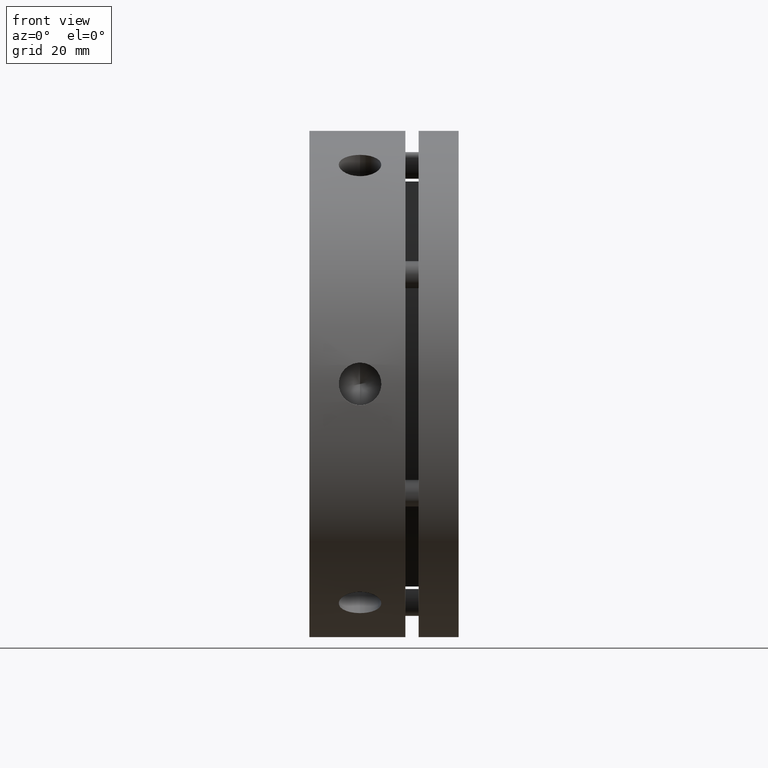
[diagram: clean part render]
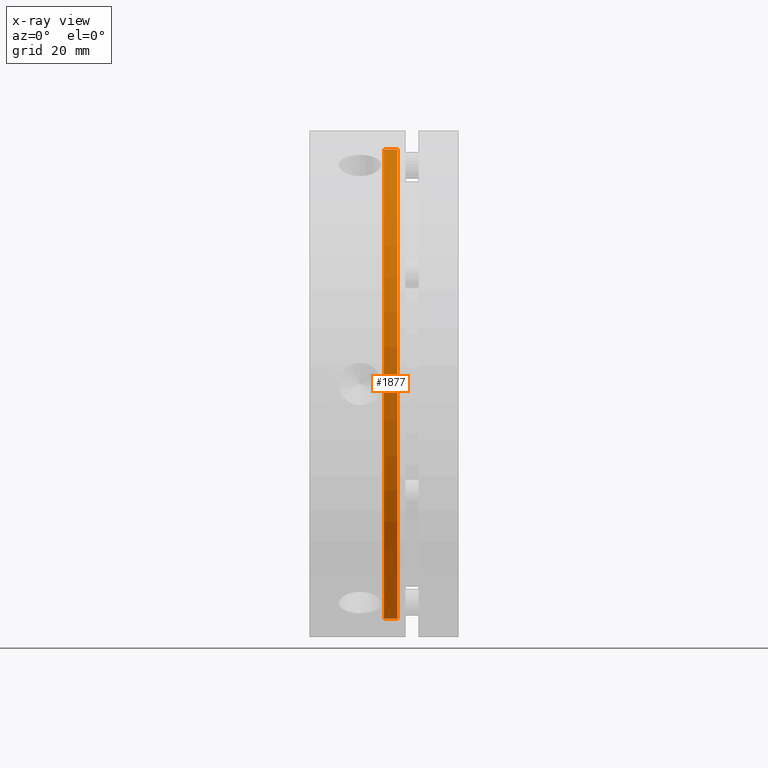
[diagram: x-ray — body ghosted, one internal face saturated and labeled with its STEP entity id]
A machine part, front view, then the same camera in x-ray: the body is ghosted and one INTERNAL B-rep face — a face not visible from any outside direction — is saturated and labeled: STEP entity #1877.
In plain terms, the highlighted cylindrical surface (partial cylindrical patch) has radius 44 mm, axis along (-1, 0, 0).
Its self-contained STEP definition (entity closure, byte-faithful):
#163 = EDGE_LOOP ( 'NONE', ( #1591, #1625, #1705, #1650 ) ) ;
#1362 = VERTEX_POINT ( 'NONE', #3187 ) ;
#1363 = VERTEX_POINT ( 'NONE', #3188 ) ;
#1368 = VERTEX_POINT ( 'NONE', #3193 ) ;
#1369 = VERTEX_POINT ( 'NONE', #3194 ) ;
#1529 = AXIS2_PLACEMENT_3D ( 'NONE', #3532, #3530, #3528 ) ;
#1591 = ORIENTED_EDGE ( 'NONE', *, *, #3142, .T. ) ;
#1625 = ORIENTED_EDGE ( 'NONE', *, *, #3141, .T. ) ;
#1650 = ORIENTED_EDGE ( 'NONE', *, *, #3132, .F. ) ;
#1705 = ORIENTED_EDGE ( 'NONE', *, *, #3134, .T. ) ;
#1877 = ADVANCED_FACE ( 'NONE', ( #2934 ), #2943, .F. ) ;
#2934 = FACE_OUTER_BOUND ( 'NONE', #163, .T. ) ;
#2943 = CYLINDRICAL_SURFACE ( 'NONE', #1529, 44.00000000000000000 ) ;
#3132 = EDGE_CURVE ( 'NONE', #1362, #1369, #4344, .T. ) ;
#3134 = EDGE_CURVE ( 'NONE', #1368, #1369, #4347, .T. ) ;
#3141 = EDGE_CURVE ( 'NONE', #1363, #1368, #4351, .T. ) ;
#3142 = EDGE_CURVE ( 'NONE', #1362, #1363, #4361, .T. ) ;
#3187 = CARTESIAN_POINT ( 'NONE',  ( 16.49999999999999600, 0.0000000000000000000, 44.00000000000000000 ) ) ;
#3188 = CARTESIAN_POINT ( 'NONE',  ( 16.49999999999999600, 5.388445916248353600E-015, -44.00000000000000000 ) ) ;
#3193 = CARTESIAN_POINT ( 'NONE',  ( 14.00000000000000400, 5.388445916248353600E-015, -44.00000000000000000 ) ) ;
#3194 = CARTESIAN_POINT ( 'NONE',  ( 14.00000000000000400, 0.0000000000000000000, 44.00000000000000000 ) ) ;
#3528 = DIRECTION ( 'NONE',  ( 0.0000000000000000000, 0.0000000000000000000, 1.000000000000000000 ) ) ;
#3530 = DIRECTION ( 'NONE',  ( -1.000000000000000000, 0.0000000000000000000, 0.0000000000000000000 ) ) ;
#3532 = CARTESIAN_POINT ( 'NONE',  ( 15.25000000000000000, 0.0000000000000000000, 0.0000000000000000000 ) ) ;
#3921 = DIRECTION ( 'NONE',  ( -1.000000000000000000, 0.0000000000000000000, 0.0000000000000000000 ) ) ;
#3924 = CARTESIAN_POINT ( 'NONE',  ( 15.25000000000000000, 0.0000000000000000000, 44.00000000000000000 ) ) ;
#3936 = CARTESIAN_POINT ( 'NONE',  ( 14.00000000000000400, 0.0000000000000000000, 0.0000000000000000000 ) ) ;
#3937 = DIRECTION ( 'NONE',  ( -1.000000000000000000, 0.0000000000000000000, 0.0000000000000000000 ) ) ;
#3938 = DIRECTION ( 'NONE',  ( 0.0000000000000000000, 0.0000000000000000000, 1.000000000000000000 ) ) ;
#3939 = CARTESIAN_POINT ( 'NONE',  ( 15.25000000000000000, 5.388445916248353600E-015, -44.00000000000000000 ) ) ;
#3949 = DIRECTION ( 'NONE',  ( -1.000000000000000000, 0.0000000000000000000, 0.0000000000000000000 ) ) ;
#3951 = CARTESIAN_POINT ( 'NONE',  ( 16.49999999999999600, 0.0000000000000000000, 0.0000000000000000000 ) ) ;
#3952 = DIRECTION ( 'NONE',  ( 1.000000000000000000, -0.0000000000000000000, -0.0000000000000000000 ) ) ;
#3953 = DIRECTION ( 'NONE',  ( 0.0000000000000000000, 0.0000000000000000000, 1.000000000000000000 ) ) ;
#4344 = LINE ( 'NONE', #3924, #4346 ) ;
#4346 = VECTOR ( 'NONE', #3921, 1000.000000000000000 ) ;
#4347 = CIRCLE ( 'NONE', #4518, 44.00000000000000000 ) ;
#4351 = LINE ( 'NONE', #3939, #4362 ) ;
#4361 = CIRCLE ( 'NONE', #4519, 44.00000000000000000 ) ;
#4362 = VECTOR ( 'NONE', #3949, 1000.000000000000000 ) ;
#4518 = AXIS2_PLACEMENT_3D ( 'NONE', #3936, #3937, #3938 ) ;
#4519 = AXIS2_PLACEMENT_3D ( 'NONE', #3951, #3952, #3953 ) ;